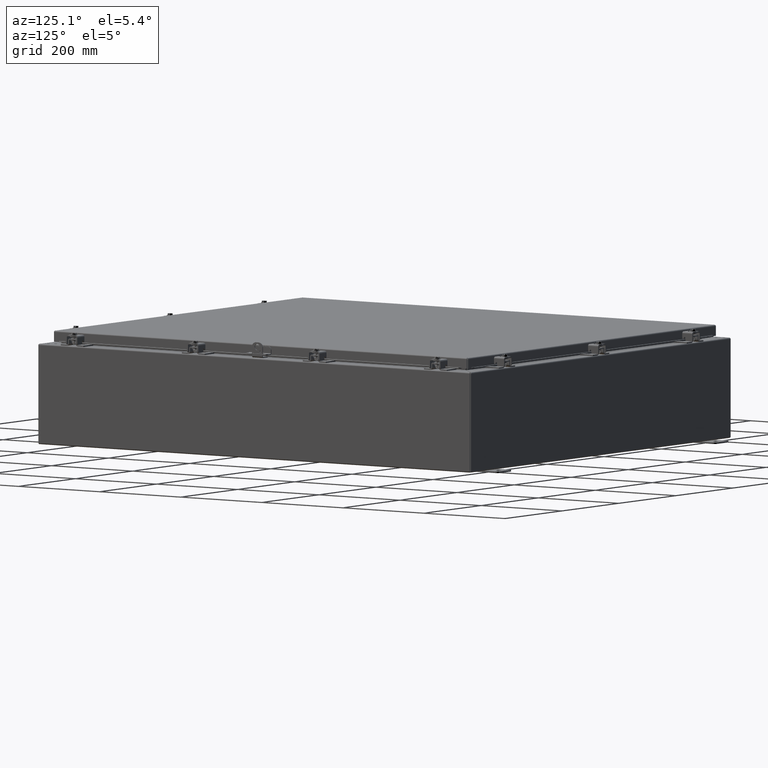
[diagram: clean part render]
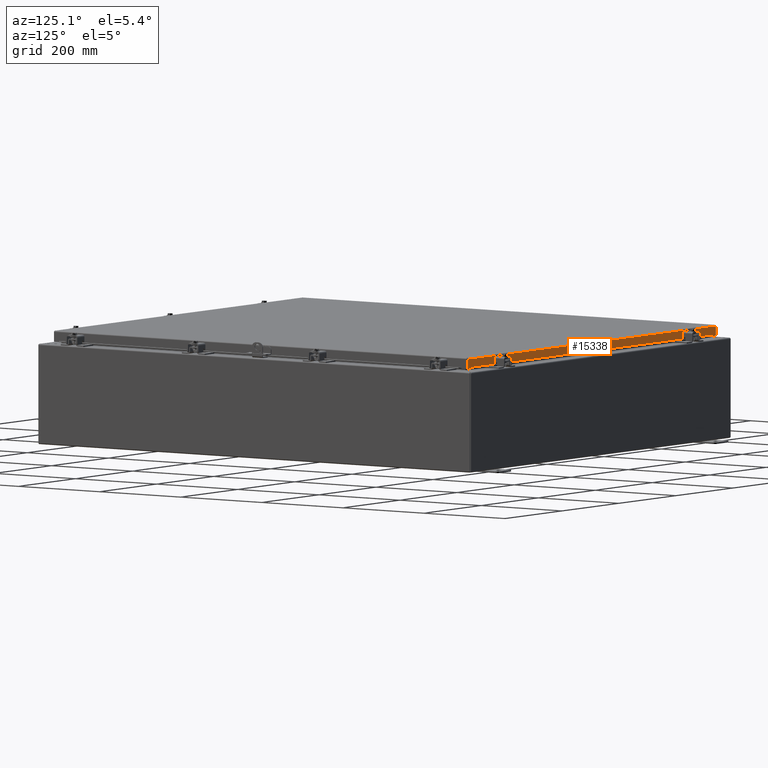
[diagram: same view with one face highlighted and labeled with its STEP entity id]
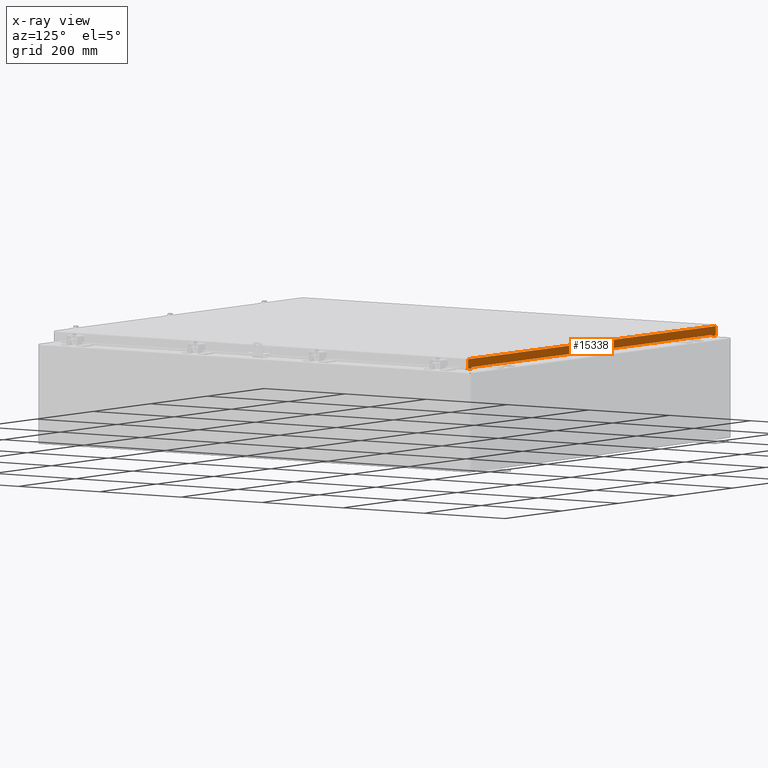
[diagram: x-ray of the same camera — body ghosted, the highlighted face saturated]
A machine part, auxiliary view. The second image highlights one B-rep face of the part: STEP entity #15338.
The next image is the same camera in x-ray: the body ghosted, the highlighted face saturated — about 0% of this face is hidden behind the body in this view.
In plain terms, the highlighted planar face has unit normal (0, -1, 0).
Its self-contained STEP definition (entity closure, byte-faithful):
#1500=PLANE('',#16259);
#2121=FACE_OUTER_BOUND('',#2982,.T.);
#2982=EDGE_LOOP('',(#11840,#11841,#11842,#11843,#11844,#11845,#11846,#11847,
#11848,#11849,#11850,#11851));
#3966=LINE('',#24796,#5386);
#3969=LINE('',#24802,#5389);
#3972=LINE('',#24810,#5392);
#3975=LINE('',#24814,#5395);
#3985=LINE('',#24835,#5405);
#3987=LINE('',#24839,#5407);
#3989=LINE('',#24842,#5409);
#3990=LINE('',#24845,#5410);
#3991=LINE('',#24847,#5411);
#3992=LINE('',#24849,#5412);
#3993=LINE('',#24851,#5413);
#3994=LINE('',#24852,#5414);
#5386=VECTOR('',#18347,33.2255857864376);
#5389=VECTOR('',#18352,0.000199999999999981);
#5392=VECTOR('',#18357,0.10545);
#5395=VECTOR('',#18362,0.00020000000000138);
#5405=VECTOR('',#18376,0.10545);
#5407=VECTOR('',#18380,0.000199999999999981);
#5409=VECTOR('',#18384,0.00020000000000138);
#5410=VECTOR('',#18387,0.4998);
#5411=VECTOR('',#18388,0.769750000000004);
#5412=VECTOR('',#18389,34.2255857864376);
#5413=VECTOR('',#18390,0.76975);
#5414=VECTOR('',#18391,0.499800000000005);
#7313=VERTEX_POINT('',#24785);
#7314=VERTEX_POINT('',#24789);
#7316=VERTEX_POINT('',#24800);
#7319=VERTEX_POINT('',#24807);
#7320=VERTEX_POINT('',#24809);
#7328=VERTEX_POINT('',#24832);
#7329=VERTEX_POINT('',#24834);
#7330=VERTEX_POINT('',#24838);
#7331=VERTEX_POINT('',#24844);
#7332=VERTEX_POINT('',#24846);
#7333=VERTEX_POINT('',#24848);
#7334=VERTEX_POINT('',#24850);
#8994=EDGE_CURVE('',#7313,#7314,#3966,.T.);
#8997=EDGE_CURVE('',#7314,#7316,#3969,.T.);
#9000=EDGE_CURVE('',#7320,#7319,#3972,.T.);
#9003=EDGE_CURVE('',#7316,#7320,#3975,.T.);
#9013=EDGE_CURVE('',#7329,#7328,#3985,.T.);
#9015=EDGE_CURVE('',#7330,#7313,#3987,.T.);
#9017=EDGE_CURVE('',#7328,#7330,#3989,.T.);
#9018=EDGE_CURVE('',#7331,#7319,#3990,.T.);
#9019=EDGE_CURVE('',#7332,#7331,#3991,.T.);
#9020=EDGE_CURVE('',#7332,#7333,#3992,.T.);
#9021=EDGE_CURVE('',#7334,#7333,#3993,.T.);
#9022=EDGE_CURVE('',#7329,#7334,#3994,.T.);
#11840=ORIENTED_EDGE('',*,*,#9000,.T.);
#11841=ORIENTED_EDGE('',*,*,#9018,.F.);
#11842=ORIENTED_EDGE('',*,*,#9019,.F.);
#11843=ORIENTED_EDGE('',*,*,#9020,.T.);
#11844=ORIENTED_EDGE('',*,*,#9021,.F.);
#11845=ORIENTED_EDGE('',*,*,#9022,.F.);
#11846=ORIENTED_EDGE('',*,*,#9013,.T.);
#11847=ORIENTED_EDGE('',*,*,#9017,.T.);
#11848=ORIENTED_EDGE('',*,*,#9015,.T.);
#11849=ORIENTED_EDGE('',*,*,#8994,.T.);
#11850=ORIENTED_EDGE('',*,*,#8997,.T.);
#11851=ORIENTED_EDGE('',*,*,#9003,.T.);
#15338=ADVANCED_FACE('',(#2121),#1500,.F.);
#16259=AXIS2_PLACEMENT_3D('',#24843,#18385,#18386);
#18347=DIRECTION('',(-1.,-2.03446598870106E-16,-1.65659512499523E-31));
#18352=DIRECTION('',(0.,3.8305030456374E-15,-1.));
#18357=DIRECTION('',(0.,-3.8305030456374E-15,1.));
#18362=DIRECTION('',(-1.,-2.03446598870106E-16,-7.21018615707408E-31));
#18376=DIRECTION('',(0.,3.8305030456374E-15,-1.));
#18380=DIRECTION('',(0.,-3.8305030456374E-15,1.));
#18384=DIRECTION('',(-1.,-2.03446598870106E-16,-7.21018615707408E-31));
#18385=DIRECTION('center_axis',(-2.03446598870106E-16,1.,3.8305030456374E-15));
#18386=DIRECTION('ref_axis',(1.,0.,1.40998324127395E-16));
#18387=DIRECTION('',(1.,2.44492297863524E-16,-1.77246582137357E-19));
#18388=DIRECTION('',(-7.26836595131469E-15,-3.8305030456374E-15,1.));
#18389=DIRECTION('',(1.,2.03446598870106E-16,6.57979881220481E-31));
#18390=DIRECTION('',(-4.43734259186819E-31,5.39030285815812E-15,-1.));
#18391=DIRECTION('',(1.,2.44492297863524E-16,-1.77246582137357E-19));
#24785=CARTESIAN_POINT('',(16.6127928932188,-20.09375,0.769749999999998));
#24789=CARTESIAN_POINT('',(-16.6127928932188,-20.09375,0.769749999999998));
#24796=CARTESIAN_POINT('',(-8.3279911372645,-20.09375,0.769749999999998));
#24800=CARTESIAN_POINT('',(-16.6127928932188,-20.09375,0.769549999999998));
#24802=CARTESIAN_POINT('',(-16.6127928932188,-20.09375,0.613279302924804));
#24807=CARTESIAN_POINT('',(-16.6129928932188,-20.09375,0.874999999999999));
#24809=CARTESIAN_POINT('',(-16.6129928932188,-20.09375,0.769549999999998));
#24810=CARTESIAN_POINT('',(-16.6129928932188,-20.09375,0.666004302924804));
#24814=CARTESIAN_POINT('',(-8.3280911372645,-20.09375,0.769549999999998));
#24832=CARTESIAN_POINT('',(16.6129928932188,-20.09375,0.769549999999998));
#24834=CARTESIAN_POINT('',(16.6129928932188,-20.09375,0.874999999999999));
#24835=CARTESIAN_POINT('',(16.6129928932188,-20.09375,0.613279302924804));
#24838=CARTESIAN_POINT('',(16.6127928932188,-20.09375,0.769549999999998));
#24839=CARTESIAN_POINT('',(16.6127928932188,-20.09375,0.666004302924804));
#24842=CARTESIAN_POINT('',(8.28480175595431,-20.09375,0.769549999999998));
#24843=CARTESIAN_POINT('Origin',(-0.0431893813101951,-20.09375,0.457008605849609));
#24844=CARTESIAN_POINT('',(-17.1127928932188,-20.09375,0.874999999999999));
#24845=CARTESIAN_POINT('',(-17.1875,-20.09375,0.874999999999999));
#24846=CARTESIAN_POINT('',(-17.1127928932188,-20.09375,0.105249999999994));
#24847=CARTESIAN_POINT('',(-17.1127928932188,-20.09375,0.473566802924743));
#24848=CARTESIAN_POINT('',(17.1127928932188,-20.09375,0.105250000000001));
#24849=CARTESIAN_POINT('',(-0.0479071906550964,-20.09375,0.105250000000001));
#24850=CARTESIAN_POINT('',(17.1127928932188,-20.09375,0.874999999999999));
#24851=CARTESIAN_POINT('',(17.1127928932188,-20.09375,0.105249999999998));
#24852=CARTESIAN_POINT('',(-17.1875,-20.09375,0.874999999999999));